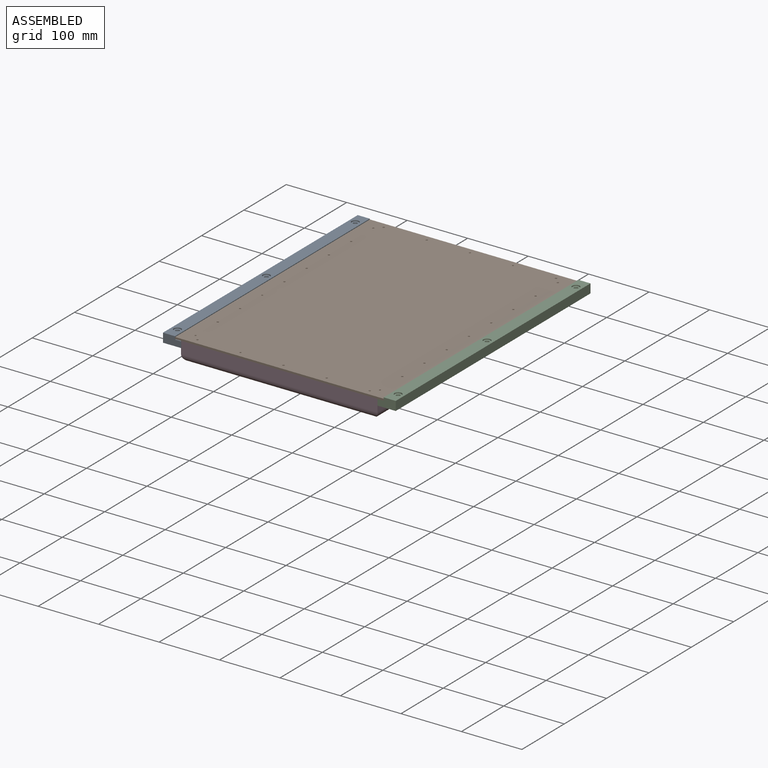
[diagram: assembled view]
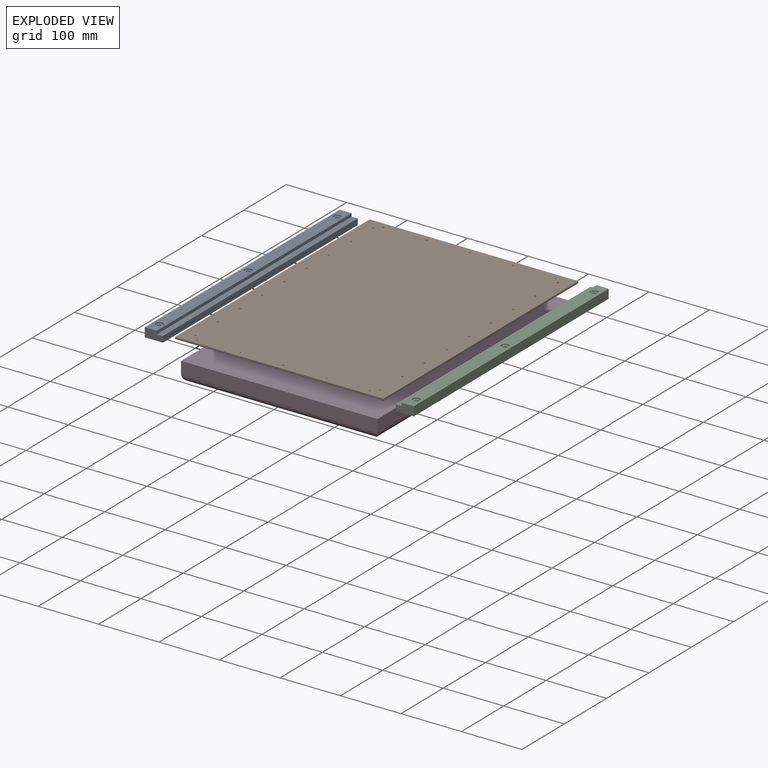
[diagram: exploded view]
GUIDED TOUR — MATED ASSEMBLY (Onshape document 6c6037efb54c07e0f4be54e5, AutoMate assembly 6c6037efb54c07e0f4be54e5_6ab58a913932d662f2b56c0b_4d621ad8a270257371f344dc_default)

This assembly has 4 components, labeled P0..P3 below (a component is one placed occurrence of a part; the same part can appear more than once), held together by 4 mates. A mate is a constraint between two components; its type names the relative motion it leaves free:
  PARALLEL — keeps the two listed directions parallel,
  PLANAR — leaves sliding in the plane through the listed point (normal = the listed direction) and rotation about that normal free.
Axis/direction vectors are unit vectors and 'through' points are millimeter coordinates, both in the assembly's world frame.

MATES
  1. PLANAR "Planar 3": P2 <-> P1, direction (-1.000, 0.000, 0.000) through (182.78, -57.88, 63.00) mm
  2. PARALLEL "Parallel 1": P2 <-> P1, direction (0.000, 1.000, 0.000) through (189.03, 172.12, 57.37) mm
  3. PLANAR "Planar 1": P3 <-> P1, direction (0.000, 0.000, 1.000) through (10.28, -57.88, 60.50) mm
  4. PLANAR "Planar 2": P2 <-> P1, direction (0.000, 0.000, 1.000) through (177.78, -57.88, 60.50) mm

ASSEMBLY ORDER
  1. P3 — the base component [order verified]
  2. P0 [order verified]
  3. P2 [order verified]
  4. P1 [order verified]
Order-tag legend:
  [order verified] — this step's position reverses a verified removal order: the component was checked to insert without passing through the ones already placed.

Of the 4 components, 2 carry the full construction recipe — the FeatureScript program that regenerates the part's solid from scratch; the rest are supplied as boundary geometry only.
Each toured component is shown spotlighted twice — in the assembled view, then in the exploded view, where a leader line traces a displaced component back to its assembled socket (saturated green if recipe-attached, orange if geometry-only; every other component desaturated gray) — followed by its recipe or geometry summary and the mates that hold it.
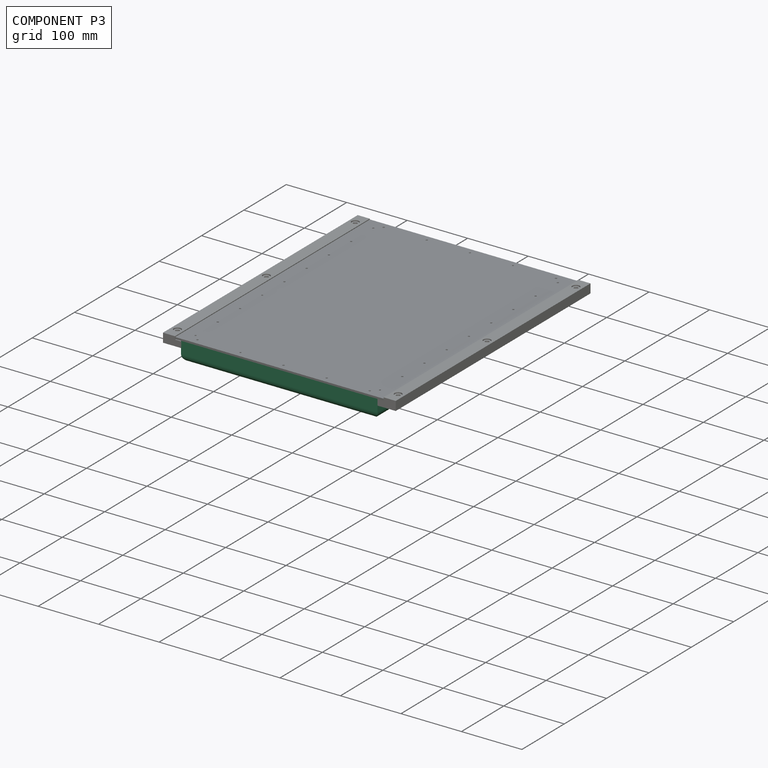
[diagram: component P3 — assembled]
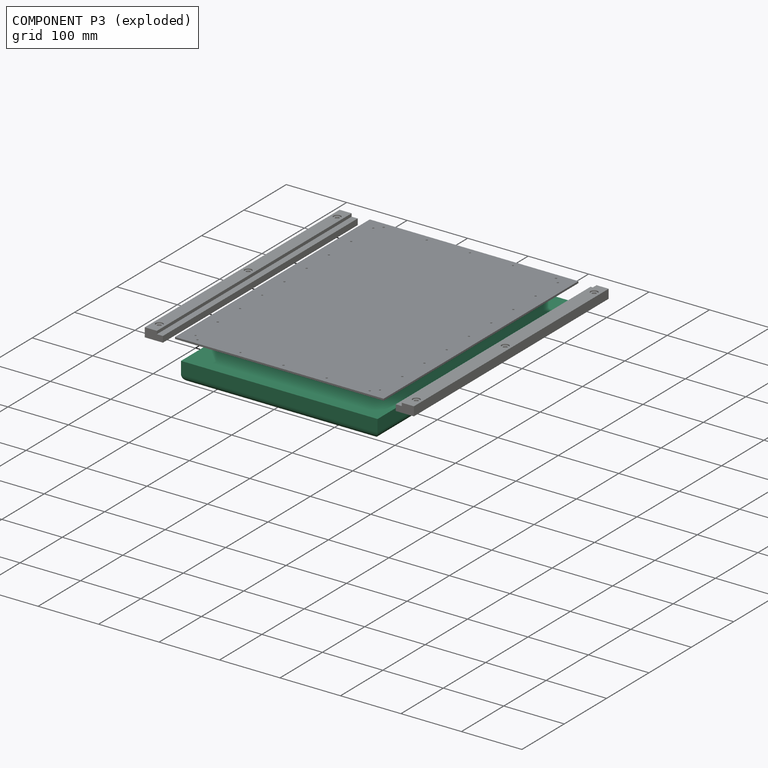
[diagram: component P3 — exploded]
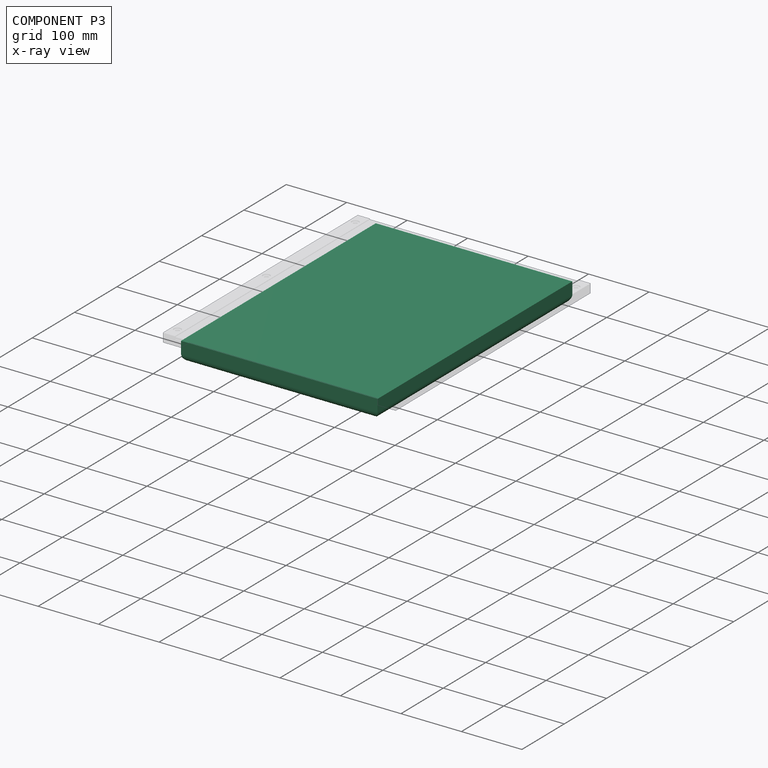
[diagram: component P3 — x-ray view]
COMPONENT P3 — recipe-attached (CADFS 00877062, mesh-verified: the recipe's output STEP matches this component's geometry to below the mesh-comparison resolution (tessellation chordal tolerance ~0.846 mm)).
Held by: PLANAR mate "Planar 1" to P1.
Construction recipe (FeatureScript — the CAD program that rebuilds this solid; sketch coordinates are in the units given by the * unit suffixes, e.g. mm):

FeatureScript 1511;
import(path : "onshape/std/geometry.fs", version : "1511.0");
import(path : "onshape/std/common.fs", version : "1511.0");
const mm = millimeter;
const VERTEX = EntityType.VERTEX;
const EDGE = EntityType.EDGE;
const FACE = EntityType.FACE;
const BODY = EntityType.BODY;
function v(x, y){return vector(x, y);}
function OD(order){return orderDisambiguation(order);}
function OSD(set){return originalSetDisambiguation(set);}
function TD(topology){return topologyDisambiguation(topology);}
function TDD(query){return trueDependencyDisambiguation(query);}
function sQuery(a, b, c) {return sketchEntityQuery(a, b, c);}

annotation { "Feature Type Name" : "Feature", "Feature Type Description" : "" }
export const myFeature = defineFeature(function(context is Context, id is Id, definition is map)
    precondition{}
    {
        {
            var Q0;
            Q0=qCreatedBy(makeId("Top.planeOp"),FACE);
            var sketch = newSketch(context, id + "F0", { "sketchPlane" : qUnion([Q0])});
            skLineSegment(sketch, "E0.bottom", {"start": v(-162.5, 230) * mm, "end": v(162.5, 230) * mm});
            skLineSegment(sketch, "E0.top", {"start": v(-162.5, -230) * mm, "end": v(162.5, -230) * mm});
            skLineSegment(sketch, "E0.left", {"start": v(-162.5, 230) * mm, "end": v(-162.5, -230) * mm});
            skLineSegment(sketch, "E0.right", {"start": v(162.5, 230) * mm, "end": v(162.5, -230) * mm});
            skSolve(sketch);
        }
        {
            var Q0;
            Q0=makeQuery(id+"F0.imprint","IMPRINT",FACE,{"disambiguationData":[TD([[makeQuery(id+"F0.imprint","IMPRINT",EDGE,{"derivedFrom":sQuery(id+"F0.wireOp",EDGE,"E0.bottom")}),-1.0]])]});
            extrude(context, id + "F1", {"entities" : qUnion([Q0]), "depth" : 32 * mm, "offsetDistance" : 25 * mm});
        }
        {
            var Q0;
            Q0=makeQuery(id+"F1.opExtrude","CAP_EDGE",EDGE,{"disambiguationData":[OSD([sQuery(id+"F0.wireOp",EDGE,"E0.left")])],"isStart":false});
            var Q1;
            Q1=makeQuery(id+"F1.opExtrude","CAP_EDGE",EDGE,{"disambiguationData":[OSD([sQuery(id+"F0.wireOp",EDGE,"E0.top")])],"isStart":false});
            var Q2;
            Q2=makeQuery(id+"F1.opExtrude","CAP_EDGE",EDGE,{"disambiguationData":[OSD([sQuery(id+"F0.wireOp",EDGE,"E0.right")])],"isStart":false});
            var Q3;
            Q3=makeQuery(id+"F1.opExtrude","CAP_EDGE",EDGE,{"disambiguationData":[OSD([sQuery(id+"F0.wireOp",EDGE,"E0.bottom")])],"isStart":false});
            fillet(context, id + "F2", {"entities" : qUnion([Q0, Q1, Q2, Q3]), "radius" : 12 * mm, "tangentPropagation" : true, "allowEdgeOverflow" : false});
        }
    });
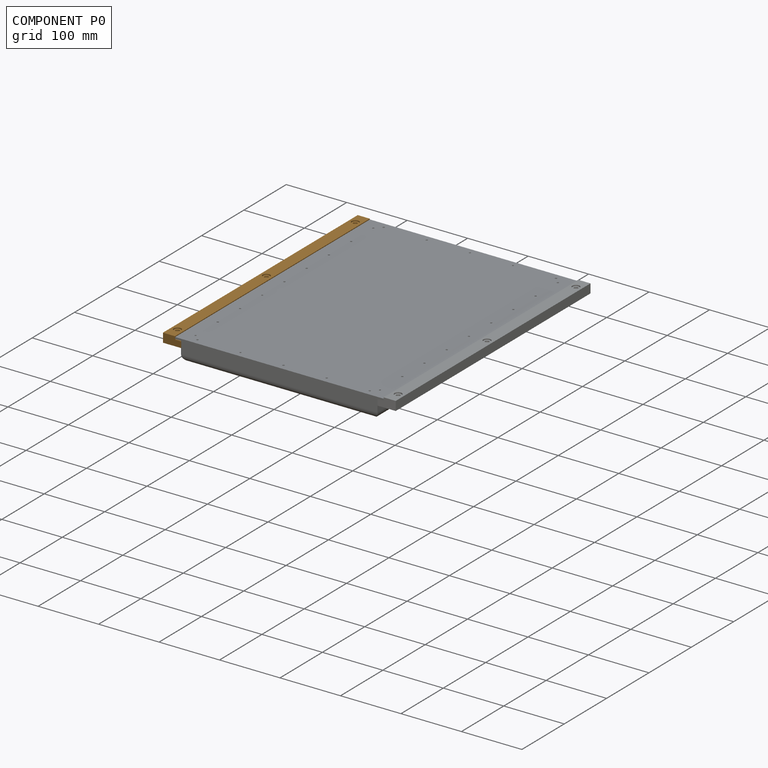
[diagram: component P0 — assembled]
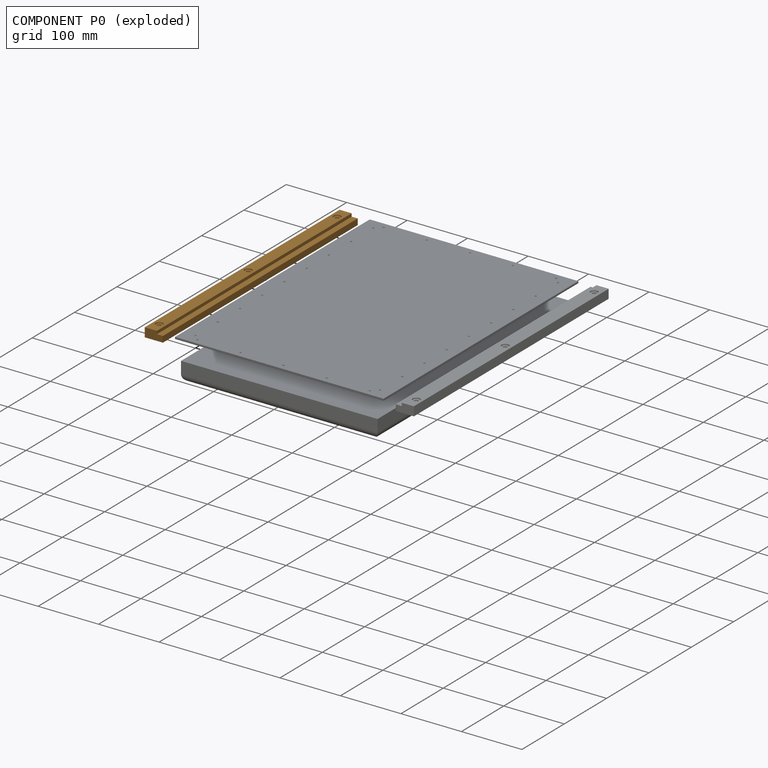
[diagram: component P0 — exploded]
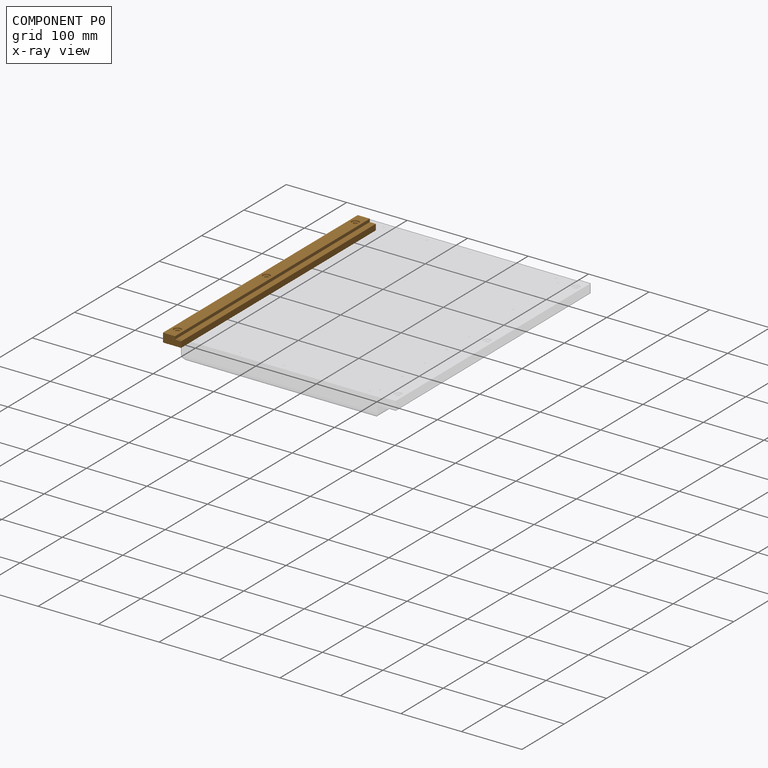
[diagram: component P0 — x-ray view]
COMPONENT P0 — geometry summary (no construction recipe available for this part):
  bounding box: 460.0 x 30.0 x 15.0 mm
  B-rep topology: 1 solid, 23 faces, 96 edges
  volume: 181100 mm^3 (87% of its bounding box)
  symmetry: mirror-symmetric across its y mid-plane
Held by: no mates (free).
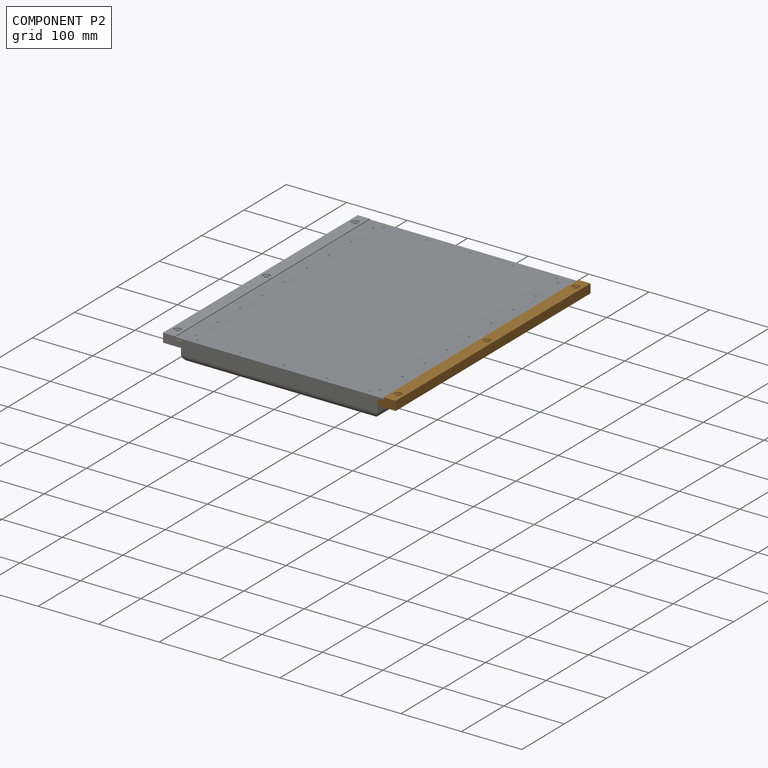
[diagram: component P2 — assembled]
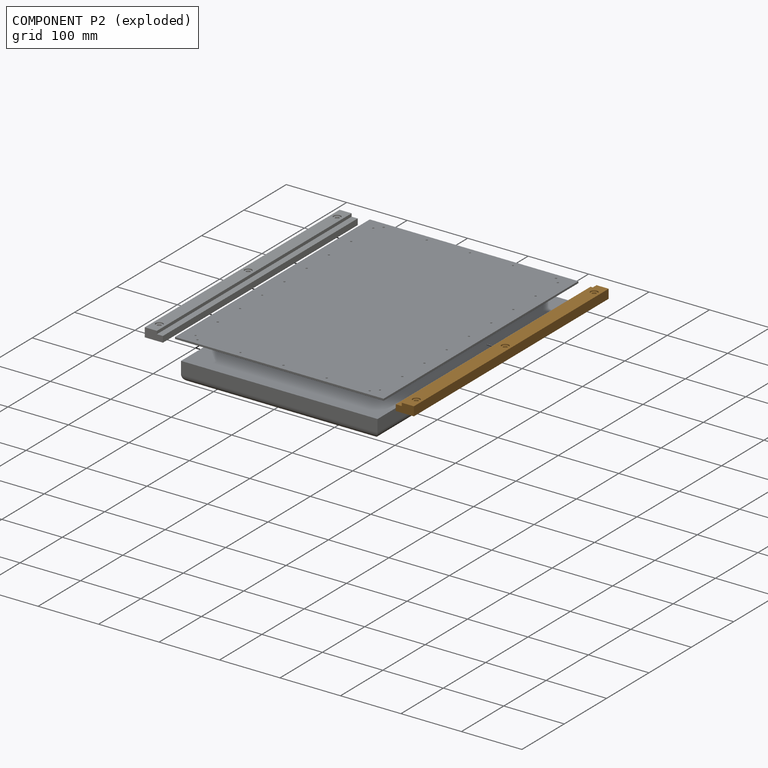
[diagram: component P2 — exploded]
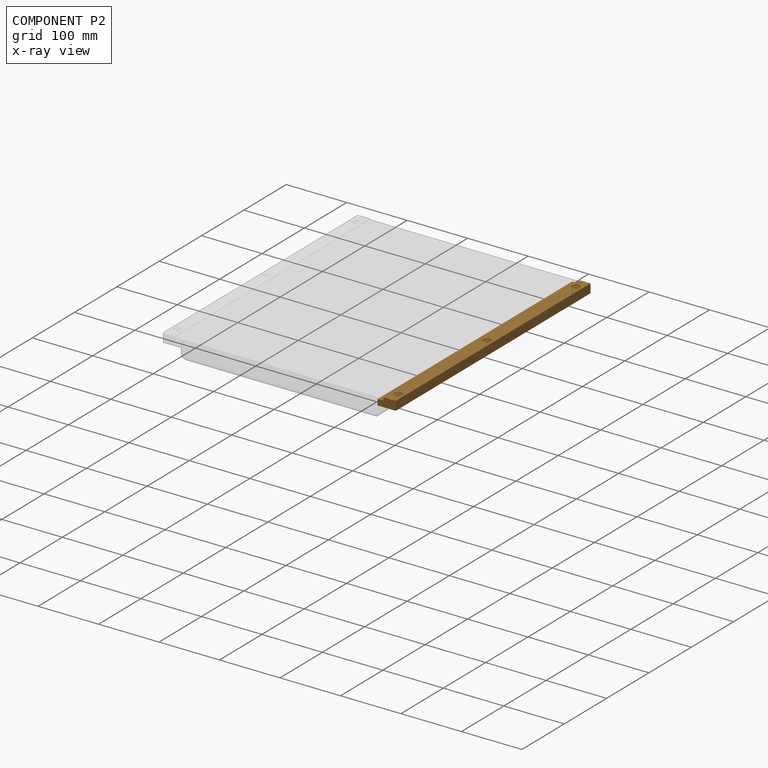
[diagram: component P2 — x-ray view]
COMPONENT P2 — geometry summary (no construction recipe available for this part):
  bounding box: 460.0 x 30.0 x 15.0 mm
  B-rep topology: 1 solid, 23 faces, 96 edges
  volume: 181100 mm^3 (87% of its bounding box)
  symmetry: mirror-symmetric across its y mid-plane
Held by: PLANAR mate "Planar 3" to P1; PARALLEL mate "Parallel 1" to P1; PLANAR mate "Planar 2" to P1.
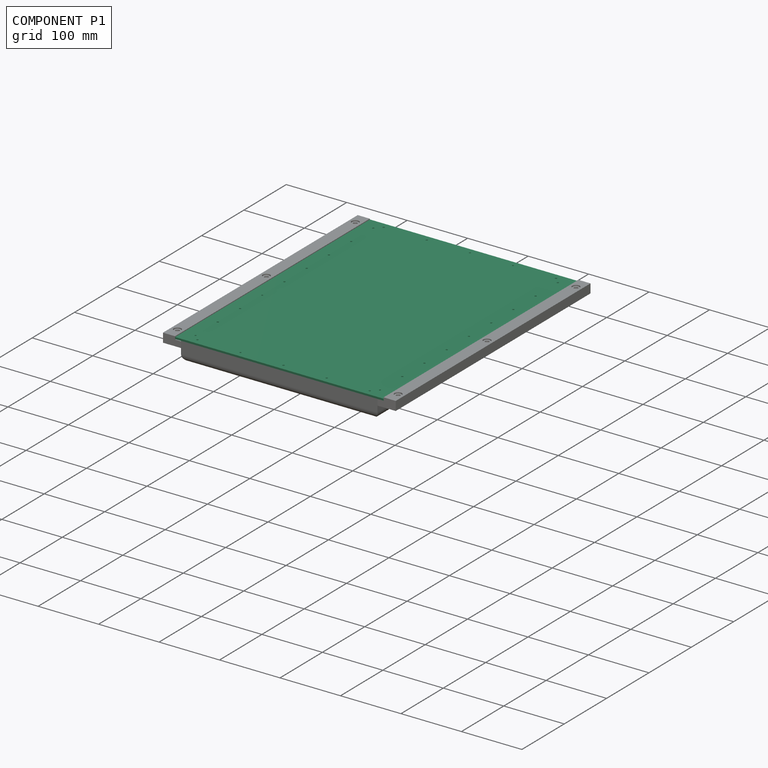
[diagram: component P1 — assembled]
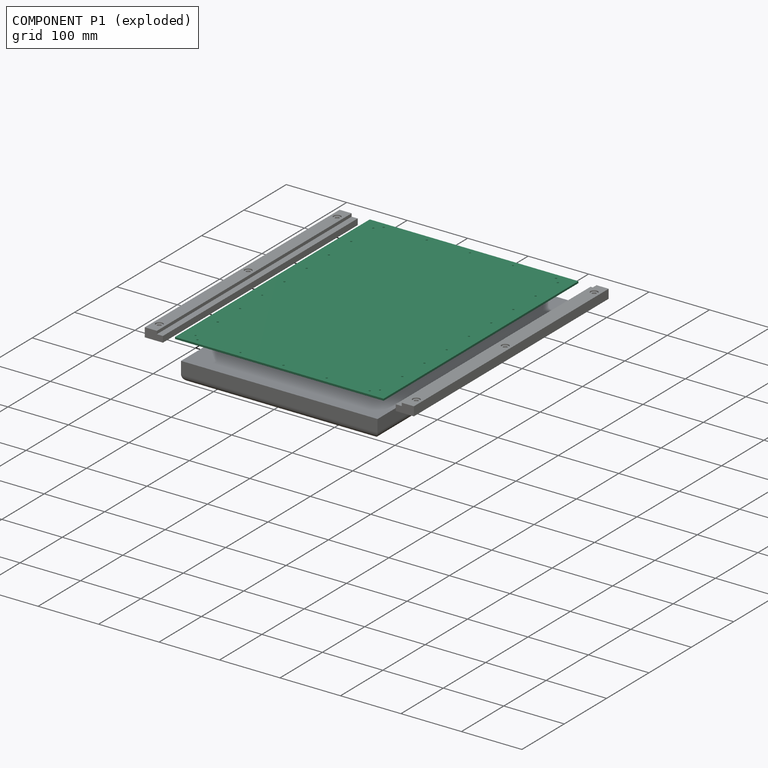
[diagram: component P1 — exploded]
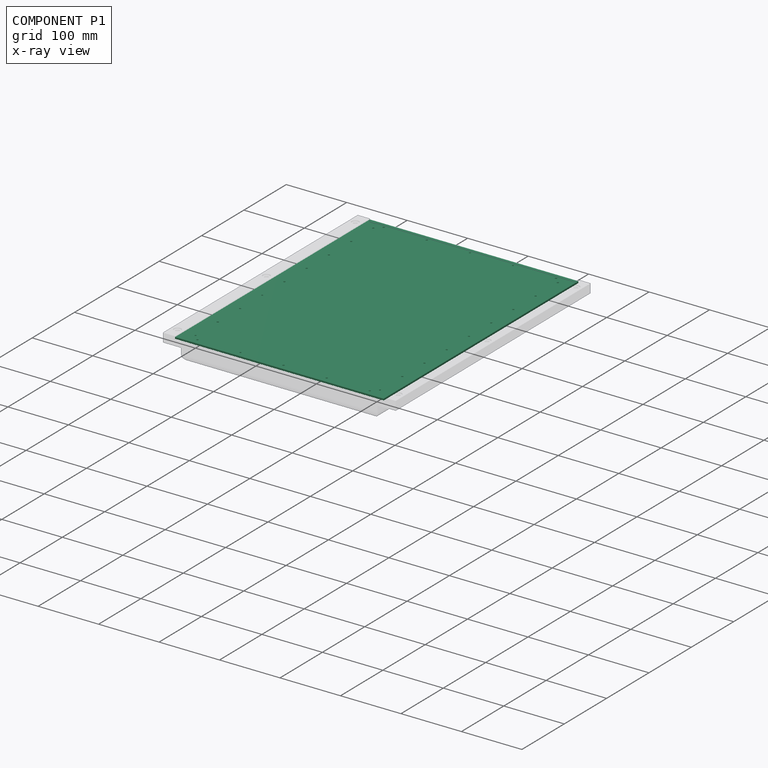
[diagram: component P1 — x-ray view]
COMPONENT P1 — recipe-attached (CADFS 00876995, mesh-verified: the recipe's output STEP matches this component's geometry to below the mesh-comparison resolution (tessellation chordal tolerance ~0.863 mm)).
Held by: PLANAR mate "Planar 3" to P2; PARALLEL mate "Parallel 1" to P2; PLANAR mate "Planar 1" to P3; PLANAR mate "Planar 2" to P2.
Construction recipe (FeatureScript — the CAD program that rebuilds this solid; sketch coordinates are in the units given by the * unit suffixes, e.g. mm):

FeatureScript 1511;
import(path : "onshape/std/geometry.fs", version : "1511.0");
import(path : "onshape/std/common.fs", version : "1511.0");
const mm = millimeter;
const VERTEX = EntityType.VERTEX;
const EDGE = EntityType.EDGE;
const FACE = EntityType.FACE;
const BODY = EntityType.BODY;
function v(x, y){return vector(x, y);}
function OD(order){return orderDisambiguation(order);}
function OSD(set){return originalSetDisambiguation(set);}
function TD(topology){return topologyDisambiguation(topology);}
function TDD(query){return trueDependencyDisambiguation(query);}
function sQuery(a, b, c) {return sketchEntityQuery(a, b, c);}

annotation { "Feature Type Name" : "Feature", "Feature Type Description" : "" }
export const myFeature = defineFeature(function(context is Context, id is Id, definition is map)
    precondition{}
    {
        {
            var Q0;
            Q0=qCreatedBy(makeId("Top.planeOp"),FACE);
            var sketch = newSketch(context, id + "F0", { "sketchPlane" : qUnion([Q0])});
            skLineSegment(sketch, "E0.bottom", {"start": v(-172.5, 230) * mm, "end": v(172.5, 230) * mm});
            skLineSegment(sketch, "E0.top", {"start": v(-172.5, -230) * mm, "end": v(172.5, -230) * mm});
            skLineSegment(sketch, "E0.left", {"start": v(-172.5, 230) * mm, "end": v(-172.5, -230) * mm});
            skLineSegment(sketch, "E0.right", {"start": v(172.5, 230) * mm, "end": v(172.5, -230) * mm});
            skSolve(sketch);
        }
        {
            var Q0;
            Q0=makeQuery(id+"F0.imprint","IMPRINT",FACE,{"disambiguationData":[TD([[makeQuery(id+"F0.imprint","IMPRINT",EDGE,{"derivedFrom":sQuery(id+"F0.wireOp",EDGE,"E0.bottom")}),-1.0]])]});
            extrude(context, id + "F1", {"entities" : qUnion([Q0]), "depth" : 3 * mm, "offsetDistance" : 25 * mm});
        }
        {
            var Q0;
            Q0=makeQuery(id+"F1.opExtrude","CAP_FACE",FACE,{"disambiguationData":[OSD([sQuery(id+"F0.wireOp",EDGE,"E0.bottom"),sQuery(id+"F0.wireOp",EDGE,"E0.top"),sQuery(id+"F0.wireOp",EDGE,"E0.left"),sQuery(id+"F0.wireOp",EDGE,"E0.right")])],"isStart":false});
            var sketch = newSketch(context, id + "F2", { "sketchPlane" : qUnion([Q0])});
            skLineSegment(sketch, "E1", {"start": v(0, 230) * mm, "end": v(0, -230) * mm, "construction": true});
            skLineSegment(sketch, "E2", {"start": v(-172.5, 0) * mm, "end": v(172.5, 0) * mm, "construction": true});
            skLineSegment(sketch, "E3", {"start": v(-152.5, -230) * mm, "end": v(-152.5, 230) * mm, "construction": true});
            skLineSegment(sketch, "E4", {"start": v(152.5, -230) * mm, "end": v(152.5, 230) * mm, "construction": true});
            skLineSegment(sketch, "E5", {"start": v(-172.5, 210) * mm, "end": v(172.5, 210) * mm, "construction": true});
            skLineSegment(sketch, "E6", {"start": v(-172.5, 157.5) * mm, "end": v(172.5, 157.5) * mm, "construction": true});
            skLineSegment(sketch, "E7", {"start": v(-172.5, 105) * mm, "end": v(172.5, 105) * mm, "construction": true});
            skLineSegment(sketch, "E8", {"start": v(-172.5, 52.5) * mm, "end": v(172.5, 52.5) * mm, "construction": true});
            skLineSegment(sketch, "E9.MirrorCS", {"start": v(-172.5, -210) * mm, "end": v(172.5, -210) * mm, "construction": true});
            skLineSegment(sketch, "E10.MirrorCS", {"start": v(-172.5, -157.5) * mm, "end": v(172.5, -157.5) * mm, "construction": true});
            skLineSegment(sketch, "E11.MirrorCS", {"start": v(-172.5, -105) * mm, "end": v(172.5, -105) * mm, "construction": true});
            skLineSegment(sketch, "E12.MirrorCS", {"start": v(-172.5, -52.5) * mm, "end": v(172.5, -52.5) * mm, "construction": true});
            skSolve(sketch);
        }
        {
            var Q0;
            Q0=makeQuery(id+"F2.imprint","IMPRINT",FACE,{"disambiguationData":[TD([[makeQuery(id+"F2.imprint","IMPRINT",EDGE,{"derivedFrom":makeQuery(id+"F1.opExtrude","CAP_EDGE",EDGE,{"disambiguationData":[OSD([sQuery(id+"F0.wireOp",EDGE,"E0.bottom")])],"isStart":false})}),-1.0]])]});
            var sketch = newSketch(context, id + "F3", { "sketchPlane" : qUnion([Q0])});
            skCircle(sketch, "E13", {"center": v(-152.5, 210) * mm, "radius": 1.5 * mm});
            skCircle(sketch, "E14", {"center": v(-152.5, 157.5) * mm, "radius": 1.5 * mm});
            skCircle(sketch, "E15", {"center": v(-152.5, 105) * mm, "radius": 1.5 * mm});
            skCircle(sketch, "E16", {"center": v(-152.5, 0) * mm, "radius": 1.5 * mm});
            skCircle(sketch, "E17.MirrorC", {"center": v(152.5, 105) * mm, "radius": 1.5 * mm});
            skCircle(sketch, "E18.MirrorC", {"center": v(152.5, 157.5) * mm, "radius": 1.5 * mm});
            skCircle(sketch, "E19.MirrorC", {"center": v(152.5, 210) * mm, "radius": 1.5 * mm});
            skCircle(sketch, "E20.MirrorC", {"center": v(152.5, 0) * mm, "radius": 1.5 * mm});
            skCircle(sketch, "E21", {"center": v(-152.5, 52.5) * mm, "radius": 1.5 * mm});
            skCircle(sketch, "E22.MirrorC", {"center": v(152.5, 52.5) * mm, "radius": 1.5 * mm});
            skCircle(sketch, "E23.MirrorC", {"center": v(-152.5, -210) * mm, "radius": 1.5 * mm});
            skCircle(sketch, "E24.MirrorC", {"center": v(-152.5, -157.5) * mm, "radius": 1.5 * mm});
            skCircle(sketch, "E25.MirrorC", {"center": v(-152.5, -105) * mm, "radius": 1.5 * mm});
            skCircle(sketch, "E26.MirrorC", {"center": v(-152.5, -52.5) * mm, "radius": 1.5 * mm});
            skCircle(sketch, "E27.MirrorC", {"center": v(152.5, -52.5) * mm, "radius": 1.5 * mm});
            skCircle(sketch, "E28.MirrorC", {"center": v(152.5, -105) * mm, "radius": 1.5 * mm});
            skCircle(sketch, "E29.MirrorC", {"center": v(152.5, -157.5) * mm, "radius": 1.5 * mm});
            skCircle(sketch, "E30.MirrorC", {"center": v(152.5, -210) * mm, "radius": 1.5 * mm});
            skSolve(sketch);
        }
        {
            var Q0;
            Q0=makeQuery(id+"F2.imprint","IMPRINT",FACE,{"disambiguationData":[TD([[makeQuery(id+"F2.imprint","IMPRINT",EDGE,{"derivedFrom":makeQuery(id+"F1.opExtrude","CAP_EDGE",EDGE,{"disambiguationData":[OSD([sQuery(id+"F0.wireOp",EDGE,"E0.bottom")])],"isStart":false})}),-1.0]])]});
            var sketch = newSketch(context, id + "F4", { "sketchPlane" : qUnion([Q0])});
            skCircle(sketch, "E31", {"center": v(-142.5, 220) * mm, "radius": 1.5 * mm});
            skCircle(sketch, "E32", {"center": v(0, 220) * mm, "radius": 1.5 * mm});
            skCircle(sketch, "E33", {"center": v(142.5, 220) * mm, "radius": 1.5 * mm});
            skCircle(sketch, "E34", {"center": v(-71.25, 220) * mm, "radius": 1.5 * mm});
            skCircle(sketch, "E35.MirrorC", {"center": v(71.25, 220) * mm, "radius": 1.5 * mm});
            skCircle(sketch, "E36.MirrorC", {"center": v(-142.5, -220) * mm, "radius": 1.5 * mm});
            skCircle(sketch, "E37.MirrorC", {"center": v(-71.25, -220) * mm, "radius": 1.5 * mm});
            skCircle(sketch, "E38.MirrorC", {"center": v(0, -220) * mm, "radius": 1.5 * mm});
            skCircle(sketch, "E39.MirrorC", {"center": v(71.25, -220) * mm, "radius": 1.5 * mm});
            skCircle(sketch, "E40.MirrorC", {"center": v(142.5, -220) * mm, "radius": 1.5 * mm});
            skSolve(sketch);
        }
        {
            var Q0;
            Q0=sQuery(id+"F3.wireOp",VERTEX,"E13.center");
            var Q1;
            Q1=sQuery(id+"F3.wireOp",VERTEX,"E14.center");
            var Q2;
            Q2=sQuery(id+"F3.wireOp",VERTEX,"E15.center");
            var Q3;
            Q3=sQuery(id+"F3.wireOp",VERTEX,"E21.center");
            var Q4;
            Q4=sQuery(id+"F3.wireOp",VERTEX,"E16.center");
            var Q5;
            Q5=sQuery(id+"F3.wireOp",VERTEX,"E26.MirrorC.center");
            var Q6;
            Q6=sQuery(id+"F3.wireOp",VERTEX,"E25.MirrorC.center");
            var Q7;
            Q7=sQuery(id+"F3.wireOp",VERTEX,"E24.MirrorC.center");
            var Q8;
            Q8=sQuery(id+"F3.wireOp",VERTEX,"E23.MirrorC.center");
            var Q9;
            Q9=sQuery(id+"F3.wireOp",VERTEX,"E30.MirrorC.center");
            var Q10;
            Q10=sQuery(id+"F3.wireOp",VERTEX,"E29.MirrorC.center");
            var Q11;
            Q11=sQuery(id+"F3.wireOp",VERTEX,"E28.MirrorC.center");
            var Q12;
            Q12=sQuery(id+"F3.wireOp",VERTEX,"E27.MirrorC.center");
            var Q13;
            Q13=sQuery(id+"F3.wireOp",VERTEX,"E20.MirrorC.center");
            var Q14;
            Q14=sQuery(id+"F3.wireOp",VERTEX,"E22.MirrorC.center");
            var Q15;
            Q15=sQuery(id+"F3.wireOp",VERTEX,"E17.MirrorC.center");
            var Q16;
            Q16=sQuery(id+"F3.wireOp",VERTEX,"E18.MirrorC.center");
            var Q17;
            Q17=sQuery(id+"F3.wireOp",VERTEX,"E19.MirrorC.center");
            var Q18;
            Q18=makeQuery(id+"F1.opExtrude","SWEPT_BODY",BODY,{"disambiguationData":[OSD([sQuery(id+"F0.wireOp",EDGE,"E0.bottom"),sQuery(id+"F0.wireOp",EDGE,"E0.top"),sQuery(id+"F0.wireOp",EDGE,"E0.left"),sQuery(id+"F0.wireOp",EDGE,"E0.right")])]});
            hole(context, id + "F5", {"style" : HoleStyle.SIMPLE, "endStyle" : HoleEndStyle.THROUGH, "holeDiameter" : 3 * mm, "majorDiameter" : 5 * mm, "isTappedThrough" : true, "tappedDepth" : 12 * mm, "tapClearance" : 3, "locations" : qUnion([Q0, Q1, Q2, Q3, Q4, Q5, Q6, Q7, Q8, Q9, Q10, Q11, Q12, Q13, Q14, Q15, Q16, Q17]), "scope" : qUnion([Q18])});
        }
        {
            var Q0;
            Q0=sQuery(id+"F4.wireOp",VERTEX,"E31.center");
            var Q1;
            Q1=sQuery(id+"F4.wireOp",VERTEX,"E34.center");
            var Q2;
            Q2=sQuery(id+"F4.wireOp",VERTEX,"E32.center");
            var Q3;
            Q3=sQuery(id+"F4.wireOp",VERTEX,"E35.MirrorC.center");
            var Q4;
            Q4=sQuery(id+"F4.wireOp",VERTEX,"E33.center");
            var Q5;
            Q5=sQuery(id+"F4.wireOp",VERTEX,"E36.MirrorC.center");
            var Q6;
            Q6=sQuery(id+"F4.wireOp",VERTEX,"E37.MirrorC.center");
            var Q7;
            Q7=sQuery(id+"F4.wireOp",VERTEX,"E38.MirrorC.center");
            var Q8;
            Q8=sQuery(id+"F4.wireOp",VERTEX,"E39.MirrorC.center");
            var Q9;
            Q9=sQuery(id+"F4.wireOp",VERTEX,"E40.MirrorC.center");
            var Q10;
            Q10=makeQuery(id+"F1.opExtrude","SWEPT_BODY",BODY,{"disambiguationData":[OSD([sQuery(id+"F0.wireOp",EDGE,"E0.bottom"),sQuery(id+"F0.wireOp",EDGE,"E0.top"),sQuery(id+"F0.wireOp",EDGE,"E0.left"),sQuery(id+"F0.wireOp",EDGE,"E0.right")])]});
            hole(context, id + "F6", {"style" : HoleStyle.SIMPLE, "endStyle" : HoleEndStyle.THROUGH, "holeDiameter" : 3 * mm, "majorDiameter" : 5 * mm, "isTappedThrough" : true, "tappedDepth" : 12 * mm, "tapClearance" : 3, "locations" : qUnion([Q0, Q1, Q2, Q3, Q4, Q5, Q6, Q7, Q8, Q9]), "scope" : qUnion([Q10])});
        }
    });
PROVENANCE & LICENSES
Assembly (occurrences, transforms, mates, per-part STEP geometry): AutoMate dataset, Zenodo record 7776208, CC0.
Construction recipes: CADFS (HuggingFace VladPyatov/CADFS, CC-BY-4.0, layered over the ABC dataset), FeatureScript reconstruction programs keyed by ABC model id.
Join: ABC meta listings map ABC model id -> Onshape documentId; within a shared document, parts are matched by geometric signature (bounding-box dims + volume at 0.1% relative tolerance, exact B-rep face/solid counts).
Verification: 2 of this assembly's 4 components carry a recipe attachment, and every attachment is mesh-verified: the CADFS STEP and the AutoMate member STEP were compared as meshes in their shared local frame (symmetric sampled-point-to-mesh distance); worst across the 2 attachments: below the mesh-comparison resolution (tessellation chordal tolerance ~0.863 mm) on a 575 mm part.
Renders: orthographic iso camera (az 35 / el 25); the floor grid conveys scale (grid pitch printed in each image; no ruler). In the exploded view each component is displaced by its stored offset vector: the offsets alone carry the explosion direction (mate normal/axis signs are not orientation cues and do not encode it), and separation distances are assigned per mate-chain, not proportionally to assembly-order depth.
